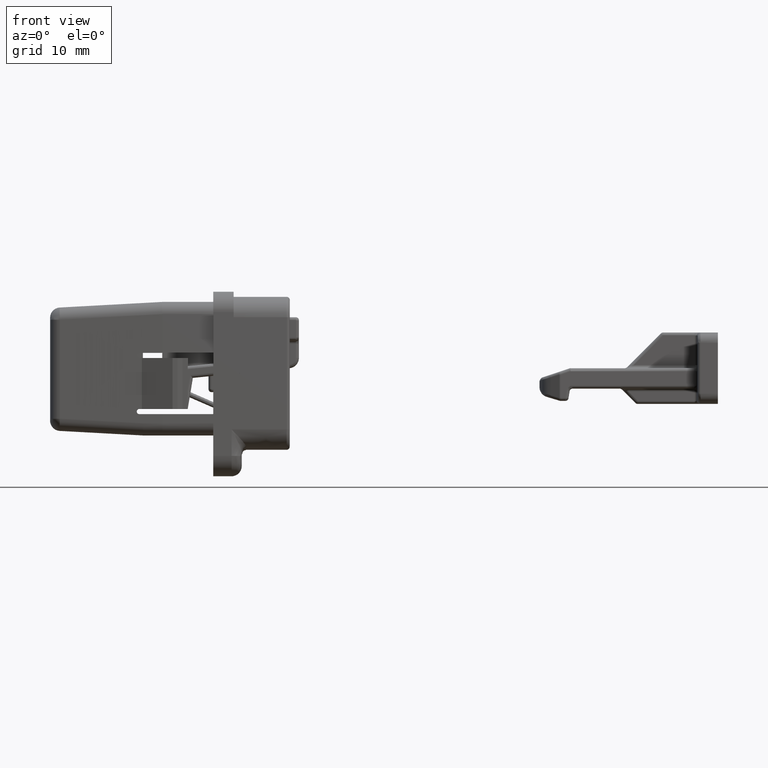
[diagram: clean part render]
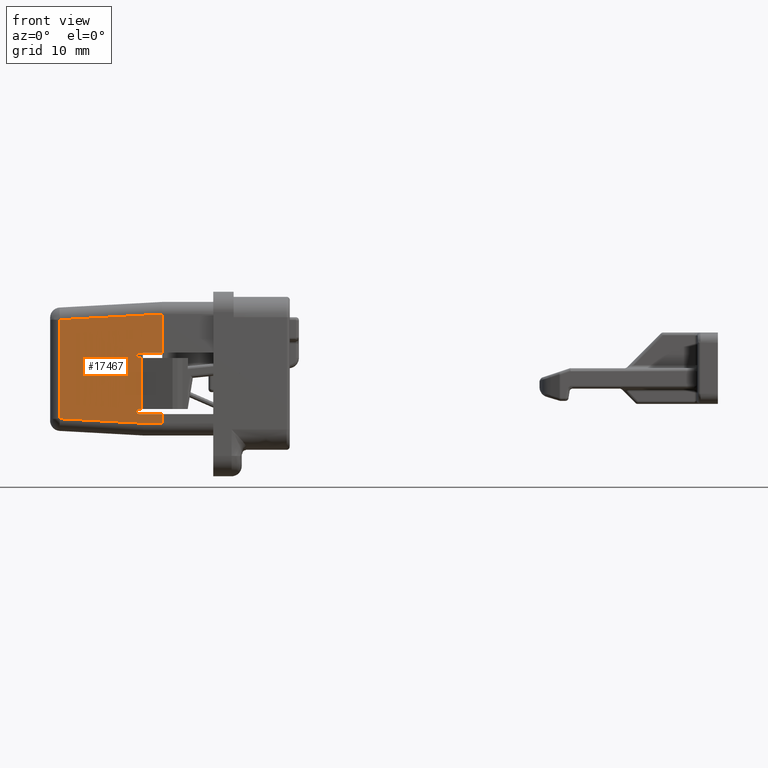
[diagram: same view with one face highlighted and labeled with its STEP entity id]
A machine part, front view. The second image highlights one B-rep face of the part: STEP entity #17467.
In plain terms, the highlighted face is a freeform B-spline surface patch.
Its self-contained STEP definition (entity closure, byte-faithful):
#13006=CARTESIAN_POINT('',(-14.500009983279639,-6.368187194169670,0.999998569488468));
#13007=VERTEX_POINT('',#13006);
#13013=CARTESIAN_POINT('',(-14.500009983144000,-6.368187194181730,-4.000001192092885));
#13014=VERTEX_POINT('',#13013);
#13015=CARTESIAN_POINT('',(-14.500009983279639,-6.368187194169670,0.999998569488468));
#13016=CARTESIAN_POINT('',(-14.500009983144000,-6.368187194181730,-4.000001192092885));
#13017=QUASI_UNIFORM_CURVE('',1,(#13015,#13016),.UNSPECIFIED.,.F.,.U.);
#13018=EDGE_CURVE('',#13007,#13014,#13017,.T.);
#13120=CARTESIAN_POINT('',(-14.750000000000000,-6.357960957473100,0.999998569488469));
#13121=VERTEX_POINT('',#13120);
#13127=CARTESIAN_POINT('',(-14.750000000000000,-6.357960957473100,0.999998569488469));
#13128=CARTESIAN_POINT('',(-14.500009983279639,-6.368187194169670,0.999998569488468));
#13129=QUASI_UNIFORM_CURVE('',1,(#13127,#13128),.UNSPECIFIED.,.F.,.U.);
#13130=EDGE_CURVE('',#13121,#13007,#13129,.T.);
#13189=CARTESIAN_POINT('',(-14.750000000000121,-6.357960957476339,-4.000001192092885));
#13190=VERTEX_POINT('',#13189);
#13191=CARTESIAN_POINT('',(-14.500009983144000,-6.368187194181730,-4.000001192092885));
#13192=CARTESIAN_POINT('',(-14.750000000000121,-6.357960957476339,-4.000001192092885));
#13193=QUASI_UNIFORM_CURVE('',1,(#13191,#13192),.UNSPECIFIED.,.F.,.U.);
#13194=EDGE_CURVE('',#13014,#13190,#13193,.T.);
#13257=CARTESIAN_POINT('',(-14.750000000000121,-6.357960957476339,1.499998569488464));
#13258=VERTEX_POINT('',#13257);
#13264=CARTESIAN_POINT('',(-14.750000000000000,-6.357960957473100,0.999998569488469));
#13265=CARTESIAN_POINT('',(-14.774533544778951,-6.356957374055914,0.999987053610976));
#13266=CARTESIAN_POINT('',(-14.819500369415300,-6.355117935037364,1.006678968220995));
#13267=CARTESIAN_POINT('',(-14.891103512103660,-6.352188895338116,1.038359334155463));
#13268=CARTESIAN_POINT('',(-14.946713126967911,-6.349914096167550,1.088750821781674));
#13269=CARTESIAN_POINT('',(-14.983284614335201,-6.348418081686316,1.153323346591340));
#13270=CARTESIAN_POINT('',(-14.999237548773809,-6.347765501694250,1.210939254333643));
#13271=CARTESIAN_POINT('',(-15.001673178347570,-6.347665868417756,1.276781594606577));
#13272=CARTESIAN_POINT('',(-14.986344544665110,-6.348292910400818,1.341295790160402));
#13273=CARTESIAN_POINT('',(-14.950765489808740,-6.349748327862055,1.404059452877270));
#13274=CARTESIAN_POINT('',(-14.906900410235711,-6.351542698257672,1.447904986390618));
#13275=CARTESIAN_POINT('',(-14.839914515282169,-6.354282862142584,1.488039280674059));
#13276=CARTESIAN_POINT('',(-14.786813750160970,-6.356455032848587,1.500060408907256));
#13277=CARTESIAN_POINT('',(-14.750000000000121,-6.357960957476339,1.499998569488464));
#13278=B_SPLINE_CURVE_WITH_KNOTS('',3,(#13264,#13265,#13266,#13267,#13268,#13269,#13270,#13271,#13272,#13273,#13274,#13275,#13276,#13277),.UNSPECIFIED.,.F.,.U.,(4,1,1,1,1,1,1,1,1,1,1,4),(0.000000247541285,0.073659389419483,0.135050991964951,0.233270236226936,0.294646163260493,0.356037626902453,0.411290433042095,0.491100417268046,0.552475537050311,0.626139597797339,0.675250933903482,0.785746338713233),.UNSPECIFIED.);
#13279=EDGE_CURVE('',#13121,#13258,#13278,.T.);
#13304=CARTESIAN_POINT('',(-14.750000000000000,-6.357960957473100,-4.500001192092900));
#13305=VERTEX_POINT('',#13304);
#13328=CARTESIAN_POINT('',(-14.750000000000000,-6.357960957473100,-4.500001192092900));
#13329=CARTESIAN_POINT('',(-14.784757546257770,-6.356539145119406,-4.500042626749225));
#13330=CARTESIAN_POINT('',(-14.846063013813829,-6.354031348093824,-4.487003824741905));
#13331=CARTESIAN_POINT('',(-14.912031087966939,-6.351332819777598,-4.444089575554455));
#13332=CARTESIAN_POINT('',(-14.957598017697441,-6.349468832511870,-4.393838051911840));
#13333=CARTESIAN_POINT('',(-14.987829985229730,-6.348232146107295,-4.337302500171020));
#13334=CARTESIAN_POINT('',(-15.002374946696239,-6.347637161474490,-4.268623996008886));
#13335=CARTESIAN_POINT('',(-14.998567718442979,-6.347792902162396,-4.206801188076952));
#13336=CARTESIAN_POINT('',(-14.980660457159891,-6.348525426982242,-4.147782066517610));
#13337=CARTESIAN_POINT('',(-14.945318447686979,-6.349971147727758,-4.087127788656119));
#13338=CARTESIAN_POINT('',(-14.884536138609720,-6.352457544127787,-4.033396454936947));
#13339=CARTESIAN_POINT('',(-14.813378604339331,-6.355368355512947,-4.004979746620015));
#13340=CARTESIAN_POINT('',(-14.768399199369130,-6.357208309146523,-4.000000620232636));
#13341=CARTESIAN_POINT('',(-14.750000000000121,-6.357960957476339,-4.000001192092885));
#13342=B_SPLINE_CURVE_WITH_KNOTS('',3,(#13328,#13329,#13330,#13331,#13332,#13333,#13334,#13335,#13336,#13337,#13338,#13339,#13340,#13341),.UNSPECIFIED.,.F.,.U.,(4,1,1,1,1,1,1,1,1,1,1,4),(0.000000281023074,0.104349004107174,0.184160153199729,0.233269907247230,0.306943365391254,0.374463903225646,0.441969598000647,0.491081655815576,0.558615986027133,0.650697550956170,0.730499263893736,0.785746338731124),.UNSPECIFIED.);
#13343=EDGE_CURVE('',#13305,#13190,#13342,.T.);
#15907=CARTESIAN_POINT('',(-22.540872397619601,-6.039263010884211,-4.953209925182209));
#15908=VERTEX_POINT('',#15907);
#16053=CARTESIAN_POINT('',(-22.540872397619651,-6.039263010884211,4.753205302946130));
#16054=VERTEX_POINT('',#16053);
#16076=CARTESIAN_POINT('',(-22.540872397619651,-6.039263010884211,4.753205302946130));
#16077=CARTESIAN_POINT('',(-22.540872397619601,-6.039263010884211,-4.953209925182209));
#16078=QUASI_UNIFORM_CURVE('',1,(#16076,#16077),.UNSPECIFIED.,.F.,.U.);
#16079=EDGE_CURVE('',#16054,#15908,#16078,.T.);
#16339=CARTESIAN_POINT('',(-12.500018650775280,-6.450000000000000,5.299999046325721));
#16340=VERTEX_POINT('',#16339);
#16341=CARTESIAN_POINT('',(-12.500018650775340,-6.450000000000000,5.300888223013560));
#16342=VERTEX_POINT('',#16341);
#16343=CARTESIAN_POINT('',(-12.500018650775280,-6.450000000000000,5.299999046325721));
#16344=CARTESIAN_POINT('',(-12.500018650775340,-6.450000000000000,5.300888223013560));
#16345=QUASI_UNIFORM_CURVE('',1,(#16343,#16344),.UNSPECIFIED.,.F.,.U.);
#16346=EDGE_CURVE('',#16340,#16342,#16345,.T.);
#16444=CARTESIAN_POINT('',(-12.500018650775340,-6.450000000000000,5.300888223013560));
#16445=CARTESIAN_POINT('',(-22.540872397619651,-6.039263010884211,4.753205302946130));
#16446=QUASI_UNIFORM_CURVE('',1,(#16444,#16445),.UNSPECIFIED.,.F.,.U.);
#16447=EDGE_CURVE('',#16342,#16054,#16446,.T.);
#16619=CARTESIAN_POINT('',(-12.500018650775340,-6.450000000000000,-5.400001007318520));
#16620=VERTEX_POINT('',#16619);
#16634=CARTESIAN_POINT('',(-14.349702385283001,-6.374335763961629,-5.400001007318500));
#16635=VERTEX_POINT('',#16634);
#16636=CARTESIAN_POINT('',(-14.349702385283001,-6.374335763961629,-5.400001007318500));
#16637=CARTESIAN_POINT('',(-12.500018650775340,-6.450000000000000,-5.400001007318520));
#16638=QUASI_UNIFORM_CURVE('',1,(#16636,#16637),.UNSPECIFIED.,.F.,.U.);
#16639=EDGE_CURVE('',#16635,#16620,#16638,.T.);
#16693=CARTESIAN_POINT('',(-22.540872397619601,-6.039263010884211,-4.953209925182209));
#16694=CARTESIAN_POINT('',(-14.349702385283001,-6.374335763961629,-5.400001007318500));
#16695=QUASI_UNIFORM_CURVE('',1,(#16693,#16694),.UNSPECIFIED.,.F.,.U.);
#16696=EDGE_CURVE('',#15908,#16635,#16695,.T.);
#17266=CARTESIAN_POINT('',(-12.500009325387660,-6.450000762939460,1.499998569488470));
#17267=VERTEX_POINT('',#17266);
#17281=CARTESIAN_POINT('',(-12.500018650775280,-6.450000000000000,5.299999046325721));
#17282=CARTESIAN_POINT('',(-12.500009325387660,-6.450000762939460,1.499998569488470));
#17283=QUASI_UNIFORM_CURVE('',1,(#17281,#17282),.UNSPECIFIED.,.F.,.U.);
#17284=EDGE_CURVE('',#16340,#17267,#17283,.T.);
#17296=CARTESIAN_POINT('',(-12.500009325387660,-6.450000762939460,-4.500001192092900));
#17297=VERTEX_POINT('',#17296);
#17303=CARTESIAN_POINT('',(-12.500009325387660,-6.450000762939460,-4.500001192092900));
#17304=CARTESIAN_POINT('',(-12.500018650775340,-6.450000000000022,-5.400001007318519));
#17305=QUASI_UNIFORM_CURVE('',1,(#17303,#17304),.UNSPECIFIED.,.F.,.U.);
#17306=EDGE_CURVE('',#17297,#16620,#17305,.T.);
#17438=CARTESIAN_POINT('',(-11.998468218034111,-6.470516713003497,-5.934510403633206));
#17439=CARTESIAN_POINT('',(-23.042413758711579,-6.018746668970879,-5.934510403633206));
#17440=CARTESIAN_POINT('',(-11.998468218034111,-6.470516713003497,5.835397906348462));
#17441=CARTESIAN_POINT('',(-23.042413758711579,-6.018746668970879,5.835397906348462));
#17442=B_SPLINE_SURFACE_WITH_KNOTS('',1,1,((#17438,#17440),(#17439,#17441)),.UNSPECIFIED.,.F.,.F.,.U.,(2,2),(2,2),(0.0,11.053181862166880),(0.0,11.769908309981670),.UNSPECIFIED.);
#17443=ORIENTED_EDGE('',*,*,#13018,.F.);
#17444=ORIENTED_EDGE('',*,*,#13130,.F.);
#17445=ORIENTED_EDGE('',*,*,#13279,.T.);
#17446=CARTESIAN_POINT('',(-12.500009325387660,-6.450000762939460,1.499998569488470));
#17447=CARTESIAN_POINT('',(-14.750000000000121,-6.357960957476339,1.499998569488464));
#17448=QUASI_UNIFORM_CURVE('',1,(#17446,#17447),.UNSPECIFIED.,.F.,.U.);
#17449=EDGE_CURVE('',#17267,#13258,#17448,.T.);
#17450=ORIENTED_EDGE('',*,*,#17449,.F.);
#17451=ORIENTED_EDGE('',*,*,#17284,.F.);
#17452=ORIENTED_EDGE('',*,*,#16346,.T.);
#17453=ORIENTED_EDGE('',*,*,#16447,.T.);
#17454=ORIENTED_EDGE('',*,*,#16079,.T.);
#17455=ORIENTED_EDGE('',*,*,#16696,.T.);
#17456=ORIENTED_EDGE('',*,*,#16639,.T.);
#17457=ORIENTED_EDGE('',*,*,#17306,.F.);
#17458=CARTESIAN_POINT('',(-14.750000000000000,-6.357960957473100,-4.500001192092900));
#17459=CARTESIAN_POINT('',(-12.500009325387660,-6.450000762939460,-4.500001192092900));
#17460=QUASI_UNIFORM_CURVE('',1,(#17458,#17459),.UNSPECIFIED.,.F.,.U.);
#17461=EDGE_CURVE('',#13305,#17297,#17460,.T.);
#17462=ORIENTED_EDGE('',*,*,#17461,.F.);
#17463=ORIENTED_EDGE('',*,*,#13343,.T.);
#17464=ORIENTED_EDGE('',*,*,#13194,.F.);
#17465=EDGE_LOOP('',(#17443,#17444,#17445,#17450,#17451,#17452,#17453,#17454,#17455,#17456,#17457,#17462,#17463,#17464));
#17466=FACE_OUTER_BOUND('',#17465,.T.);
#17467=ADVANCED_FACE('',(#17466),#17442,.F.);